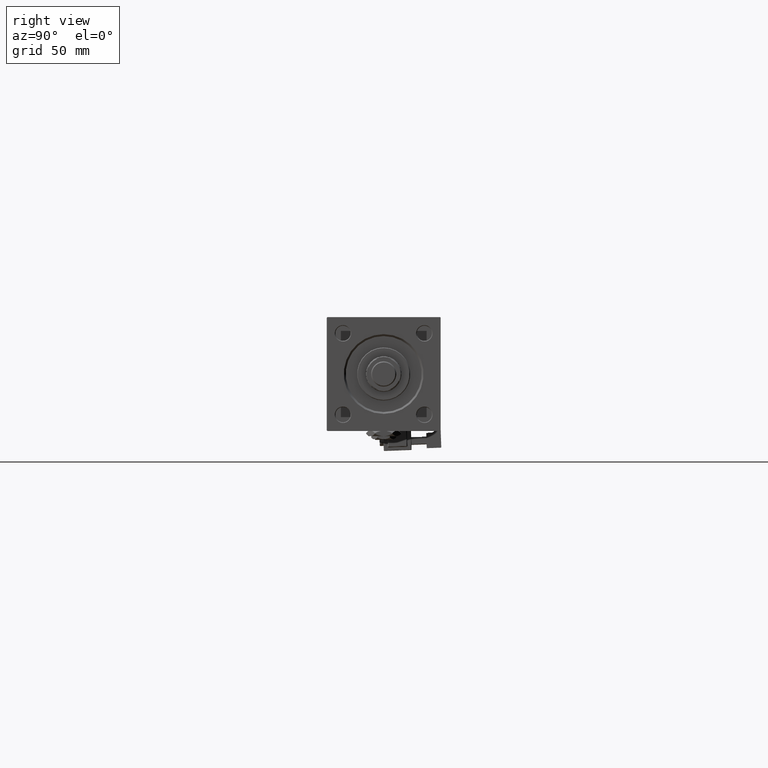
[diagram: clean part render]
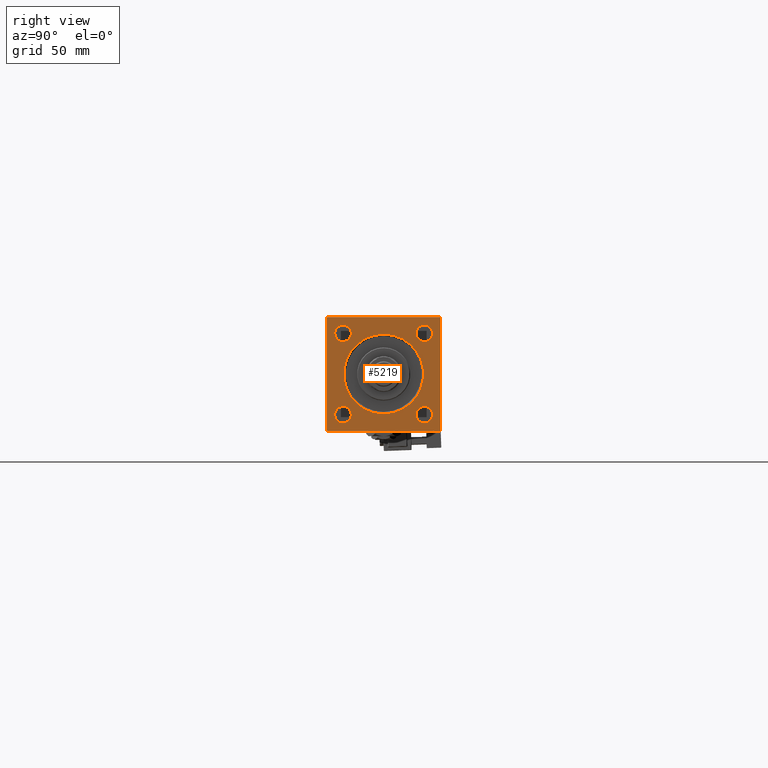
[diagram: same view with one face highlighted and labeled with its STEP entity id]
A machine part, right view. The second image highlights one B-rep face of the part: STEP entity #5219.
In plain terms, the highlighted planar face has unit normal (-1, 0, 0).
Its self-contained STEP definition (entity closure, byte-faithful):
#289 = DIRECTION ( 'NONE',  ( 0.000000000000000000, 0.000000000000000000, 1.000000000000000000 ) ) ;
#1117 = EDGE_CURVE ( 'NONE', #43547, #40945, #31247, .T. ) ;
#1210 = AXIS2_PLACEMENT_3D ( 'NONE', #53336, #3344, #28324 ) ;
#1574 = CARTESIAN_POINT ( 'NONE',  ( 485.0000000000000000, 32.14999999999999147, 38.65000000000011227 ) ) ;
#1765 = CIRCLE ( 'NONE', #32789, 31.49999999999997158 ) ;
#2106 = VERTEX_POINT ( 'NONE', #28937 ) ;
#2619 = CARTESIAN_POINT ( 'NONE',  ( 485.0000000000000000, 3.857637417314158745E-15, 31.49999999999997158 ) ) ;
#2790 = VERTEX_POINT ( 'NONE', #13212 ) ;
#3344 = DIRECTION ( 'NONE',  ( -1.000000000000000000, 0.000000000000000000, -0.000000000000000000 ) ) ;
#3846 = AXIS2_PLACEMENT_3D ( 'NONE', #30578, #4775, #42809 ) ;
#4185 = EDGE_CURVE ( 'NONE', #40945, #43547, #10064, .T. ) ;
#4592 = CARTESIAN_POINT ( 'NONE',  ( 485.0000000000000000, -45.00000000000000000, 44.49999999999992895 ) ) ;
#4775 = DIRECTION ( 'NONE',  ( -1.000000000000000000, -0.000000000000000000, -0.000000000000000000 ) ) ;
#4794 = ORIENTED_EDGE ( 'NONE', *, *, #54831, .T. ) ;
#5219 = ADVANCED_FACE ( 'NONE', ( #28054, #23621, #15833, #32489, #32210, #53885 ), #19992, .F. ) ;
#6208 = CIRCLE ( 'NONE', #31914, 6.500000000000117240 ) ;
#6267 = DIRECTION ( 'NONE',  ( 0.000000000000000000, 0.7071067811865916486, -0.7071067811865033859 ) ) ;
#6513 = VERTEX_POINT ( 'NONE', #49399 ) ;
#6965 = CARTESIAN_POINT ( 'NONE',  ( 485.0000000000000000, -32.15000000000001279, -38.65000000000012648 ) ) ;
#7659 = CARTESIAN_POINT ( 'NONE',  ( 485.0000000000000000, 0.000000000000000000, 0.000000000000000000 ) ) ;
#7663 = LINE ( 'NONE', #20971, #40231 ) ;
#7697 = ORIENTED_EDGE ( 'NONE', *, *, #23725, .T. ) ;
#7738 = DIRECTION ( 'NONE',  ( 0.000000000000000000, -0.7071067811865867636, 0.7071067811865081598 ) ) ;
#7903 = VERTEX_POINT ( 'NONE', #44393 ) ;
#8150 = DIRECTION ( 'NONE',  ( 0.000000000000000000, 0.000000000000000000, 1.000000000000000000 ) ) ;
#8181 = EDGE_LOOP ( 'NONE', ( #4794, #26580, #34790, #27426, #44024, #52881, #7697, #49223 ) ) ;
#8643 = CARTESIAN_POINT ( 'NONE',  ( 485.0000000000000000, -32.14999999999999147, 38.65000000000010516 ) ) ;
#8725 = EDGE_LOOP ( 'NONE', ( #10397, #23520 ) ) ;
#8970 = CARTESIAN_POINT ( 'NONE',  ( 485.0000000000000000, 32.14999999999999147, 25.64999999999989555 ) ) ;
#9606 = EDGE_CURVE ( 'NONE', #16493, #52621, #13834, .T. ) ;
#10064 = CIRCLE ( 'NONE', #3846, 6.500000000000117240 ) ;
#10324 = DIRECTION ( 'NONE',  ( -1.000000000000000000, -0.000000000000000000, -0.000000000000000000 ) ) ;
#10397 = ORIENTED_EDGE ( 'NONE', *, *, #47547, .T. ) ;
#10428 = VERTEX_POINT ( 'NONE', #11851 ) ;
#10877 = ORIENTED_EDGE ( 'NONE', *, *, #1117, .T. ) ;
#10982 = ORIENTED_EDGE ( 'NONE', *, *, #23659, .T. ) ;
#11106 = CARTESIAN_POINT ( 'NONE',  ( 485.0000000000000000, 45.00000000000001421, -45.00000000000000000 ) ) ;
#11241 = EDGE_LOOP ( 'NONE', ( #43211, #10982 ) ) ;
#11446 = EDGE_LOOP ( 'NONE', ( #29603, #45741 ) ) ;
#11545 = DIRECTION ( 'NONE',  ( -1.000000000000000000, -0.000000000000000000, -0.000000000000000000 ) ) ;
#11851 = CARTESIAN_POINT ( 'NONE',  ( 485.0000000000000000, 44.50000000000001421, -45.00000000000000000 ) ) ;
#12177 = VERTEX_POINT ( 'NONE', #13343 ) ;
#13212 = CARTESIAN_POINT ( 'NONE',  ( 485.0000000000000000, 32.14999999999999147, -38.65000000000012648 ) ) ;
#13343 = CARTESIAN_POINT ( 'NONE',  ( 485.0000000000000000, -44.99999999999999289, -44.49999999999997158 ) ) ;
#13661 = CARTESIAN_POINT ( 'NONE',  ( 485.0000000000000000, 0.000000000000000000, 0.000000000000000000 ) ) ;
#13834 = CIRCLE ( 'NONE', #24465, 6.500000000000117240 ) ;
#14270 = AXIS2_PLACEMENT_3D ( 'NONE', #29723, #38327, #289 ) ;
#14360 = CARTESIAN_POINT ( 'NONE',  ( 485.0000000000000000, -45.00000000000000000, 44.99999999999998579 ) ) ;
#14990 = CARTESIAN_POINT ( 'NONE',  ( 485.0000000000000000, 44.49999999999990052, 45.00000000000000000 ) ) ;
#15054 = DIRECTION ( 'NONE',  ( 0.000000000000000000, 0.000000000000000000, 1.000000000000000000 ) ) ;
#15155 = EDGE_CURVE ( 'NONE', #12177, #7903, #19302, .T. ) ;
#15178 = LINE ( 'NONE', #52683, #34634 ) ;
#15294 = CARTESIAN_POINT ( 'NONE',  ( 485.0000000000000000, 32.14999999999999147, 32.15000000000000568 ) ) ;
#15833 = FACE_BOUND ( 'NONE', #8725, .T. ) ;
#15842 = VERTEX_POINT ( 'NONE', #14990 ) ;
#15934 = EDGE_CURVE ( 'NONE', #10428, #7903, #41367, .T. ) ;
#16493 = VERTEX_POINT ( 'NONE', #50469 ) ;
#16806 = DIRECTION ( 'NONE',  ( 0.000000000000000000, 0.000000000000000000, -1.000000000000000000 ) ) ;
#17568 = VERTEX_POINT ( 'NONE', #1574 ) ;
#17570 = VECTOR ( 'NONE', #7738, 1000.000000000000000 ) ;
#19302 = LINE ( 'NONE', #32063, #28112 ) ;
#19335 = DIRECTION ( 'NONE',  ( 0.000000000000000000, 0.000000000000000000, 1.000000000000000000 ) ) ;
#19704 = DIRECTION ( 'NONE',  ( 0.000000000000000000, -1.000000000000000000, 0.000000000000000000 ) ) ;
#19992 = PLANE ( 'NONE',  #1210 ) ;
#20247 = CARTESIAN_POINT ( 'NONE',  ( 485.0000000000000000, -32.15000000000001279, -32.15000000000000568 ) ) ;
#20971 = CARTESIAN_POINT ( 'NONE',  ( 485.0000000000000000, 45.00000000000001421, 45.00000000000000000 ) ) ;
#21426 = EDGE_LOOP ( 'NONE', ( #49141, #22096 ) ) ;
#21517 = DIRECTION ( 'NONE',  ( -0.000000000000000000, -0.7071067811865081598, -0.7071067811865867636 ) ) ;
#21867 = LINE ( 'NONE', #14360, #51455 ) ;
#21885 = VERTEX_POINT ( 'NONE', #39893 ) ;
#22096 = ORIENTED_EDGE ( 'NONE', *, *, #33343, .T. ) ;
#22895 = VECTOR ( 'NONE', #36134, 1000.000000000000000 ) ;
#23165 = EDGE_CURVE ( 'NONE', #49555, #24290, #50961, .T. ) ;
#23520 = ORIENTED_EDGE ( 'NONE', *, *, #9606, .T. ) ;
#23621 = FACE_BOUND ( 'NONE', #37072, .T. ) ;
#23659 = EDGE_CURVE ( 'NONE', #17568, #46963, #37309, .T. ) ;
#23725 = EDGE_CURVE ( 'NONE', #15842, #49555, #15178, .T. ) ;
#24290 = VERTEX_POINT ( 'NONE', #40594 ) ;
#24465 = AXIS2_PLACEMENT_3D ( 'NONE', #42295, #46459, #8150 ) ;
#24942 = DIRECTION ( 'NONE',  ( 0.000000000000000000, 0.000000000000000000, 1.000000000000000000 ) ) ;
#25217 = CARTESIAN_POINT ( 'NONE',  ( 485.0000000000000000, 44.49999999999990052, 45.00000000000000000 ) ) ;
#25629 = DIRECTION ( 'NONE',  ( 0.000000000000000000, 0.000000000000000000, 1.000000000000000000 ) ) ;
#25777 = EDGE_CURVE ( 'NONE', #46963, #17568, #39270, .T. ) ;
#25929 = AXIS2_PLACEMENT_3D ( 'NONE', #45884, #45338, #50066 ) ;
#26094 = AXIS2_PLACEMENT_3D ( 'NONE', #44764, #35331, #15054 ) ;
#26255 = EDGE_CURVE ( 'NONE', #39510, #6513, #34816, .T. ) ;
#26580 = ORIENTED_EDGE ( 'NONE', *, *, #15155, .T. ) ;
#27426 = ORIENTED_EDGE ( 'NONE', *, *, #41139, .T. ) ;
#27434 = AXIS2_PLACEMENT_3D ( 'NONE', #37436, #46584, #24942 ) ;
#28054 = FACE_BOUND ( 'NONE', #11241, .T. ) ;
#28112 = VECTOR ( 'NONE', #6267, 1000.000000000000000 ) ;
#28215 = EDGE_CURVE ( 'NONE', #30442, #2106, #7663, .T. ) ;
#28324 = DIRECTION ( 'NONE',  ( -0.000000000000000000, 0.000000000000000000, 1.000000000000000000 ) ) ;
#28937 = CARTESIAN_POINT ( 'NONE',  ( 485.0000000000000000, 45.00000000000001421, -44.49999999999991473 ) ) ;
#29603 = ORIENTED_EDGE ( 'NONE', *, *, #54476, .T. ) ;
#29723 = CARTESIAN_POINT ( 'NONE',  ( 485.0000000000000000, 32.14999999999999147, 32.15000000000000568 ) ) ;
#30315 = CARTESIAN_POINT ( 'NONE',  ( 485.0000000000000000, -32.14999999999999147, 25.64999999999987423 ) ) ;
#30442 = VERTEX_POINT ( 'NONE', #36533 ) ;
#30578 = CARTESIAN_POINT ( 'NONE',  ( 485.0000000000000000, -32.14999999999999147, 32.14999999999999147 ) ) ;
#31247 = CIRCLE ( 'NONE', #25929, 6.500000000000117240 ) ;
#31914 = AXIS2_PLACEMENT_3D ( 'NONE', #20247, #37181, #42171 ) ;
#32063 = CARTESIAN_POINT ( 'NONE',  ( 485.0000000000000000, -44.49999999999992895, -45.00000000000000000 ) ) ;
#32210 = FACE_BOUND ( 'NONE', #11446, .T. ) ;
#32489 = FACE_BOUND ( 'NONE', #21426, .T. ) ;
#32585 = VECTOR ( 'NONE', #19704, 1000.000000000000000 ) ;
#32634 = ORIENTED_EDGE ( 'NONE', *, *, #4185, .T. ) ;
#32789 = AXIS2_PLACEMENT_3D ( 'NONE', #13661, #46736, #25629 ) ;
#33343 = EDGE_CURVE ( 'NONE', #21885, #2790, #41178, .T. ) ;
#34634 = VECTOR ( 'NONE', #52955, 1000.000000000000000 ) ;
#34790 = ORIENTED_EDGE ( 'NONE', *, *, #15934, .F. ) ;
#34816 = CIRCLE ( 'NONE', #45460, 31.49999999999997158 ) ;
#35331 = DIRECTION ( 'NONE',  ( -1.000000000000000000, -0.000000000000000000, -0.000000000000000000 ) ) ;
#36134 = DIRECTION ( 'NONE',  ( -0.000000000000000000, 0.7071067811865081598, 0.7071067811865867636 ) ) ;
#36533 = CARTESIAN_POINT ( 'NONE',  ( 485.0000000000000000, 45.00000000000001421, 44.49999999999994316 ) ) ;
#37072 = EDGE_LOOP ( 'NONE', ( #32634, #10877 ) ) ;
#37181 = DIRECTION ( 'NONE',  ( -1.000000000000000000, -0.000000000000000000, -0.000000000000000000 ) ) ;
#37309 = CIRCLE ( 'NONE', #14270, 6.500000000000110134 ) ;
#37436 = CARTESIAN_POINT ( 'NONE',  ( 485.0000000000000000, 32.14999999999999147, -32.15000000000000568 ) ) ;
#38327 = DIRECTION ( 'NONE',  ( -1.000000000000000000, -0.000000000000000000, -0.000000000000000000 ) ) ;
#39270 = CIRCLE ( 'NONE', #40155, 6.500000000000110134 ) ;
#39510 = VERTEX_POINT ( 'NONE', #2619 ) ;
#39756 = CARTESIAN_POINT ( 'NONE',  ( 485.0000000000000000, 45.00000000000001421, -44.49999999999994316 ) ) ;
#39856 = CIRCLE ( 'NONE', #27434, 6.500000000000117240 ) ;
#39893 = CARTESIAN_POINT ( 'NONE',  ( 485.0000000000000000, 32.14999999999999147, -25.64999999999988844 ) ) ;
#40155 = AXIS2_PLACEMENT_3D ( 'NONE', #15294, #10324, #53076 ) ;
#40231 = VECTOR ( 'NONE', #16806, 1000.000000000000000 ) ;
#40594 = CARTESIAN_POINT ( 'NONE',  ( 485.0000000000000000, -45.00000000000000000, 44.49999999999992895 ) ) ;
#40945 = VERTEX_POINT ( 'NONE', #30315 ) ;
#41139 = EDGE_CURVE ( 'NONE', #10428, #2106, #44199, .T. ) ;
#41178 = CIRCLE ( 'NONE', #26094, 6.500000000000117240 ) ;
#41367 = LINE ( 'NONE', #11106, #32585 ) ;
#41500 = EDGE_CURVE ( 'NONE', #30442, #15842, #54393, .T. ) ;
#42171 = DIRECTION ( 'NONE',  ( 0.000000000000000000, 0.000000000000000000, 1.000000000000000000 ) ) ;
#42295 = CARTESIAN_POINT ( 'NONE',  ( 485.0000000000000000, -32.15000000000001279, -32.15000000000000568 ) ) ;
#42809 = DIRECTION ( 'NONE',  ( 0.000000000000000000, 0.000000000000000000, 1.000000000000000000 ) ) ;
#43211 = ORIENTED_EDGE ( 'NONE', *, *, #25777, .T. ) ;
#43547 = VERTEX_POINT ( 'NONE', #8643 ) ;
#44024 = ORIENTED_EDGE ( 'NONE', *, *, #28215, .F. ) ;
#44199 = LINE ( 'NONE', #39756, #22895 ) ;
#44393 = CARTESIAN_POINT ( 'NONE',  ( 485.0000000000000000, -44.49999999999990052, -45.00000000000000000 ) ) ;
#44764 = CARTESIAN_POINT ( 'NONE',  ( 485.0000000000000000, 32.14999999999999147, -32.15000000000000568 ) ) ;
#45338 = DIRECTION ( 'NONE',  ( -1.000000000000000000, -0.000000000000000000, -0.000000000000000000 ) ) ;
#45460 = AXIS2_PLACEMENT_3D ( 'NONE', #7659, #11545, #19335 ) ;
#45741 = ORIENTED_EDGE ( 'NONE', *, *, #26255, .T. ) ;
#45884 = CARTESIAN_POINT ( 'NONE',  ( 485.0000000000000000, -32.14999999999999147, 32.14999999999999147 ) ) ;
#46459 = DIRECTION ( 'NONE',  ( -1.000000000000000000, -0.000000000000000000, -0.000000000000000000 ) ) ;
#46584 = DIRECTION ( 'NONE',  ( -1.000000000000000000, -0.000000000000000000, -0.000000000000000000 ) ) ;
#46736 = DIRECTION ( 'NONE',  ( -1.000000000000000000, -0.000000000000000000, -0.000000000000000000 ) ) ;
#46963 = VERTEX_POINT ( 'NONE', #8970 ) ;
#47547 = EDGE_CURVE ( 'NONE', #52621, #16493, #6208, .T. ) ;
#47981 = VECTOR ( 'NONE', #21517, 1000.000000000000000 ) ;
#48254 = DIRECTION ( 'NONE',  ( 0.000000000000000000, 7.709882115452478166E-17, -1.000000000000000000 ) ) ;
#49141 = ORIENTED_EDGE ( 'NONE', *, *, #53089, .T. ) ;
#49223 = ORIENTED_EDGE ( 'NONE', *, *, #23165, .T. ) ;
#49399 = CARTESIAN_POINT ( 'NONE',  ( 485.0000000000000000, 0.000000000000000000, -31.49999999999997158 ) ) ;
#49555 = VERTEX_POINT ( 'NONE', #54345 ) ;
#50066 = DIRECTION ( 'NONE',  ( 0.000000000000000000, 0.000000000000000000, 1.000000000000000000 ) ) ;
#50469 = CARTESIAN_POINT ( 'NONE',  ( 485.0000000000000000, -32.15000000000001279, -25.64999999999988844 ) ) ;
#50961 = LINE ( 'NONE', #4592, #47981 ) ;
#51455 = VECTOR ( 'NONE', #48254, 1000.000000000000000 ) ;
#52621 = VERTEX_POINT ( 'NONE', #6965 ) ;
#52683 = CARTESIAN_POINT ( 'NONE',  ( 485.0000000000000000, 45.00000000000001421, 45.00000000000000000 ) ) ;
#52881 = ORIENTED_EDGE ( 'NONE', *, *, #41500, .T. ) ;
#52955 = DIRECTION ( 'NONE',  ( 0.000000000000000000, -1.000000000000000000, -1.541976423090495140E-16 ) ) ;
#53076 = DIRECTION ( 'NONE',  ( 0.000000000000000000, 0.000000000000000000, 1.000000000000000000 ) ) ;
#53089 = EDGE_CURVE ( 'NONE', #2790, #21885, #39856, .T. ) ;
#53336 = CARTESIAN_POINT ( 'NONE',  ( 485.0000000000000000, 0.000000000000000000, 0.000000000000000000 ) ) ;
#53885 = FACE_OUTER_BOUND ( 'NONE', #8181, .T. ) ;
#54345 = CARTESIAN_POINT ( 'NONE',  ( 485.0000000000000000, -44.49999999999997158, 44.99999999999998579 ) ) ;
#54393 = LINE ( 'NONE', #25217, #17570 ) ;
#54476 = EDGE_CURVE ( 'NONE', #6513, #39510, #1765, .T. ) ;
#54831 = EDGE_CURVE ( 'NONE', #24290, #12177, #21867, .T. ) ;